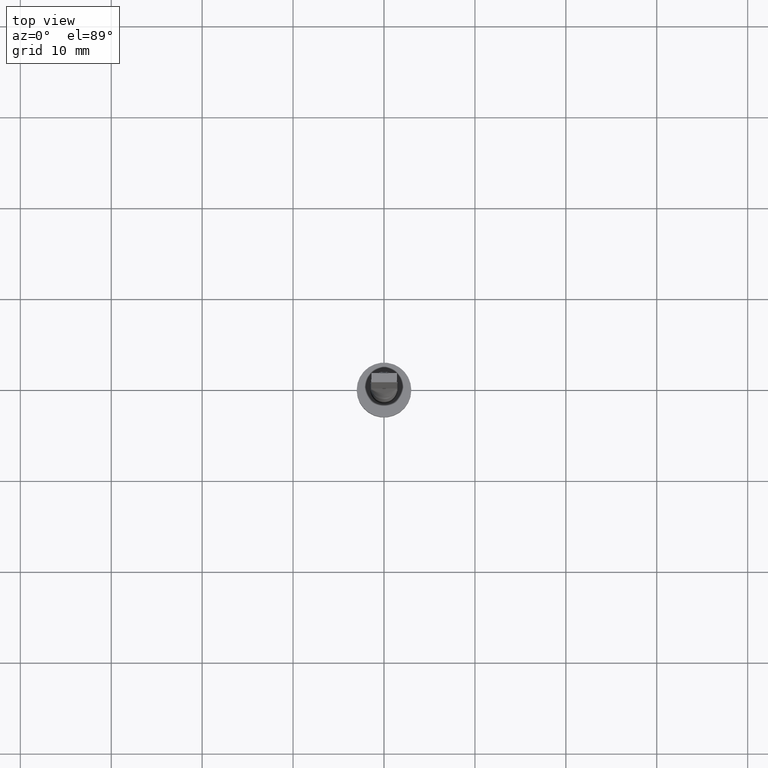
[diagram: clean part render]
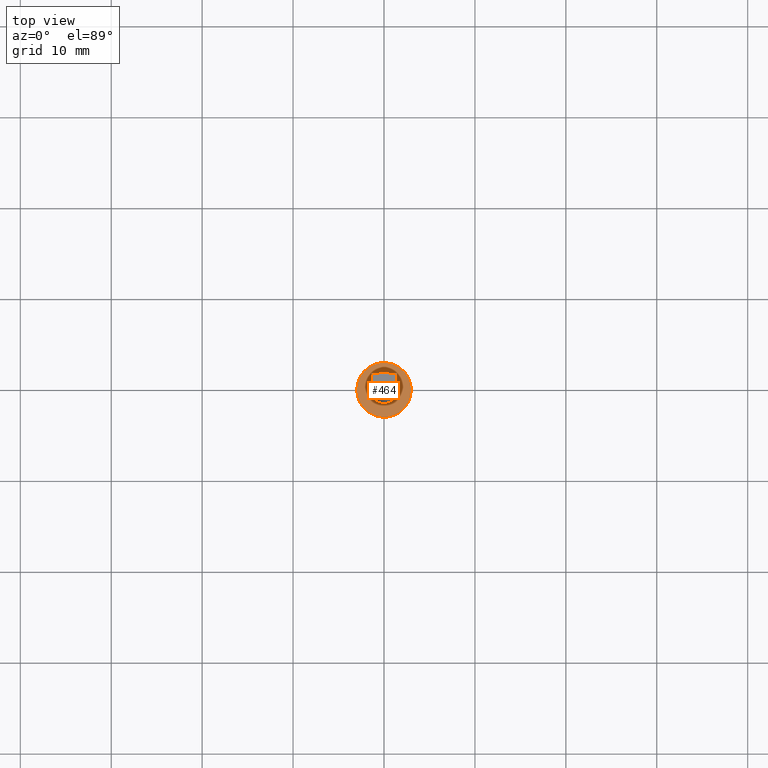
[diagram: same view with one face highlighted and labeled with its STEP entity id]
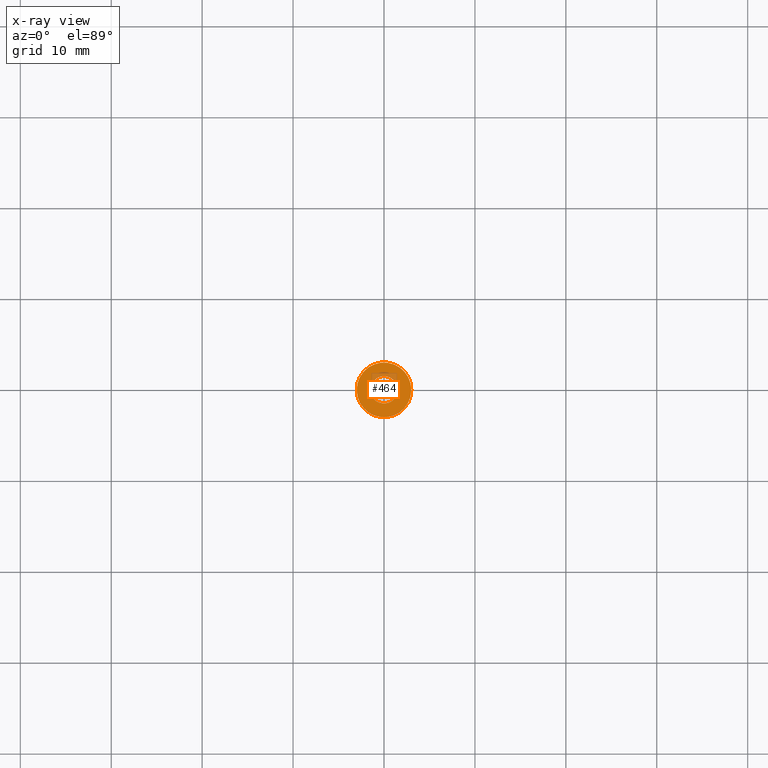
[diagram: x-ray of the same camera — body ghosted, the highlighted face saturated]
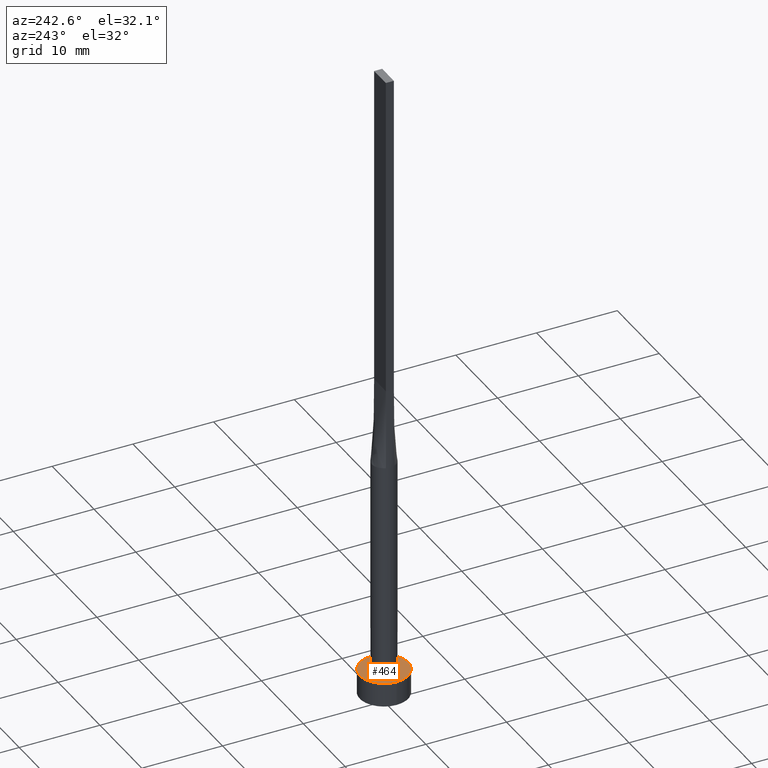
[diagram: same view with one face highlighted and labeled with its STEP entity id]
A machine part, top view. The second image highlights one B-rep face of the part: STEP entity #464.
The next image is the same camera in x-ray: the body ghosted, the highlighted face saturated — about 9% of this face is hidden behind the body in this view.
A second angle (auxiliary view) of the same face is appended — the face is thin or edge-on in the first view.
In plain terms, the highlighted planar face has unit normal (0, 0, 1).
Its self-contained STEP definition (entity closure, byte-faithful):
#10 = DIRECTION ( 'NONE',  ( 1.000000000000000000, 0.000000000000000000, -0.000000000000000000 ) ) ;
#26 = ORIENTED_EDGE ( 'NONE', *, *, #105, .F. ) ;
#52 = FACE_OUTER_BOUND ( 'NONE', #260, .T. ) ;
#69 = CARTESIAN_POINT ( 'NONE',  ( 1.500000000000000222, 1.836970198721030181E-16, 3.000000000000000000 ) ) ;
#96 = AXIS2_PLACEMENT_3D ( 'NONE', #282, #413, #99 ) ;
#99 = DIRECTION ( 'NONE',  ( 1.000000000000000000, 0.000000000000000000, 0.000000000000000000 ) ) ;
#100 = AXIS2_PLACEMENT_3D ( 'NONE', #495, #267, #270 ) ;
#104 = AXIS2_PLACEMENT_3D ( 'NONE', #237, #501, #10 ) ;
#105 = EDGE_CURVE ( 'NONE', #395, #128, #199, .T. ) ;
#113 = DIRECTION ( 'NONE',  ( 0.000000000000000000, 0.000000000000000000, 1.000000000000000000 ) ) ;
#117 = CIRCLE ( 'NONE', #189, 3.000000000000000444 ) ;
#128 = VERTEX_POINT ( 'NONE', #201 ) ;
#140 = FACE_BOUND ( 'NONE', #192, .T. ) ;
#148 = DIRECTION ( 'NONE',  ( 0.000000000000000000, 0.000000000000000000, 1.000000000000000000 ) ) ;
#166 = AXIS2_PLACEMENT_3D ( 'NONE', #458, #148, #546 ) ;
#167 = ORIENTED_EDGE ( 'NONE', *, *, #447, .T. ) ;
#169 = CARTESIAN_POINT ( 'NONE',  ( -3.000000000000000444, 0.000000000000000000, 3.000000000000000000 ) ) ;
#189 = AXIS2_PLACEMENT_3D ( 'NONE', #386, #113, #381 ) ;
#192 = EDGE_LOOP ( 'NONE', ( #215, #26 ) ) ;
#193 = CIRCLE ( 'NONE', #166, 3.000000000000000444 ) ;
#195 = CARTESIAN_POINT ( 'NONE',  ( 3.000000000000000444, 3.673940397442060361E-16, 3.000000000000000000 ) ) ;
#199 = CIRCLE ( 'NONE', #96, 1.500000000000000222 ) ;
#201 = CARTESIAN_POINT ( 'NONE',  ( -1.500000000000000222, 0.000000000000000000, 3.000000000000000000 ) ) ;
#215 = ORIENTED_EDGE ( 'NONE', *, *, #317, .F. ) ;
#218 = VERTEX_POINT ( 'NONE', #195 ) ;
#227 = EDGE_CURVE ( 'NONE', #218, #379, #117, .T. ) ;
#237 = CARTESIAN_POINT ( 'NONE',  ( 0.000000000000000000, 0.000000000000000000, 3.000000000000000000 ) ) ;
#260 = EDGE_LOOP ( 'NONE', ( #167, #528 ) ) ;
#267 = DIRECTION ( 'NONE',  ( 0.000000000000000000, 0.000000000000000000, 1.000000000000000000 ) ) ;
#270 = DIRECTION ( 'NONE',  ( 1.000000000000000000, 0.000000000000000000, 0.000000000000000000 ) ) ;
#279 = CIRCLE ( 'NONE', #100, 1.500000000000000222 ) ;
#282 = CARTESIAN_POINT ( 'NONE',  ( 0.000000000000000000, 0.000000000000000000, 3.000000000000000000 ) ) ;
#317 = EDGE_CURVE ( 'NONE', #128, #395, #279, .T. ) ;
#379 = VERTEX_POINT ( 'NONE', #169 ) ;
#381 = DIRECTION ( 'NONE',  ( 1.000000000000000000, 0.000000000000000000, 0.000000000000000000 ) ) ;
#386 = CARTESIAN_POINT ( 'NONE',  ( 0.000000000000000000, 0.000000000000000000, 3.000000000000000000 ) ) ;
#395 = VERTEX_POINT ( 'NONE', #69 ) ;
#413 = DIRECTION ( 'NONE',  ( 0.000000000000000000, 0.000000000000000000, 1.000000000000000000 ) ) ;
#414 = PLANE ( 'NONE',  #104 ) ;
#447 = EDGE_CURVE ( 'NONE', #379, #218, #193, .T. ) ;
#458 = CARTESIAN_POINT ( 'NONE',  ( 0.000000000000000000, 0.000000000000000000, 3.000000000000000000 ) ) ;
#464 = ADVANCED_FACE ( 'NONE', ( #140, #52 ), #414, .T. ) ;
#495 = CARTESIAN_POINT ( 'NONE',  ( 0.000000000000000000, 0.000000000000000000, 3.000000000000000000 ) ) ;
#501 = DIRECTION ( 'NONE',  ( 0.000000000000000000, 0.000000000000000000, 1.000000000000000000 ) ) ;
#528 = ORIENTED_EDGE ( 'NONE', *, *, #227, .T. ) ;
#546 = DIRECTION ( 'NONE',  ( 1.000000000000000000, 0.000000000000000000, 0.000000000000000000 ) ) ;